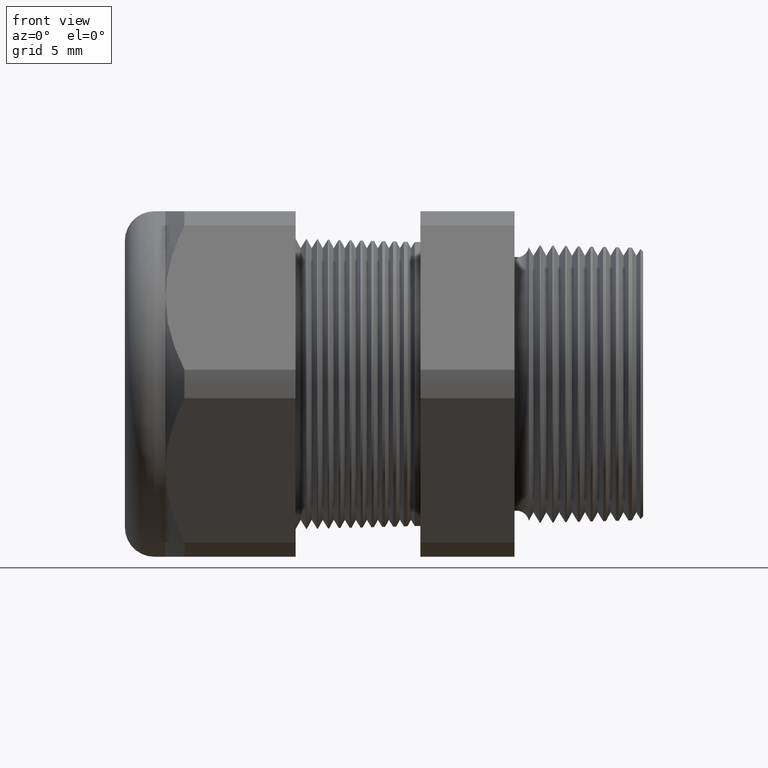
[diagram: clean part render]
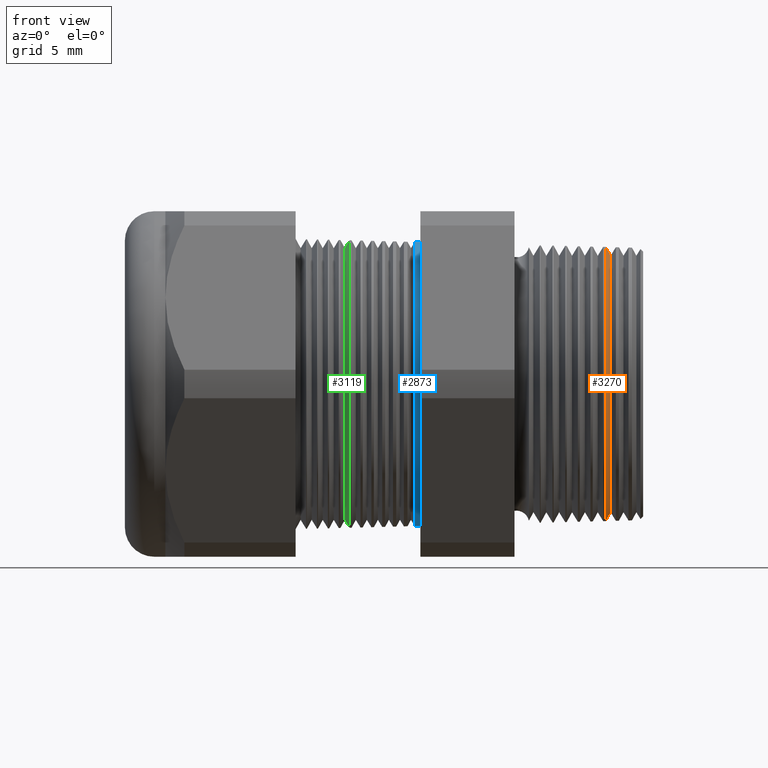
[diagram: same view with three faces highlighted in distinct colors, each labeled with its STEP entity id]
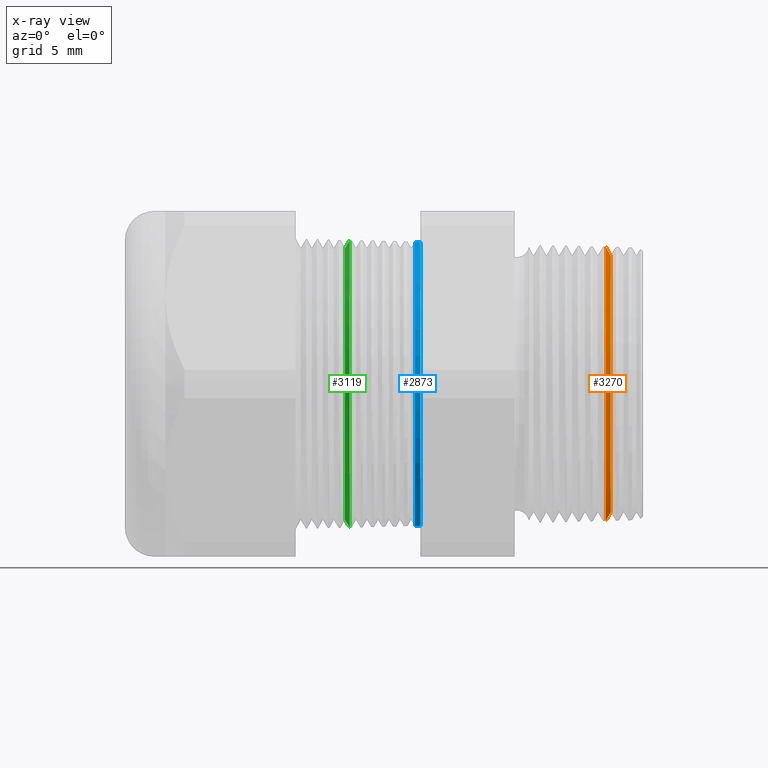
[diagram: x-ray of the same camera — body ghosted, the three highlighted faces saturated]
A machine part, front view with three faces highlighted in distinct colors.
The next image is the same camera in x-ray (body ghosted, the three faces saturated) — at least one of them is partly hidden behind the body in this view.
Their STEP definitions:

[orange] entity #3270 — the highlighted conical surface has half-angle 61.5 deg.
#60 = CARTESIAN_POINT ( 'NONE',  ( -0.04847073567907520000, 4.420147533535343700E-017, -0.3489649185127733400 ) ) ;
#66 = CARTESIAN_POINT ( 'NONE',  ( -0.06146640013548344100, 0.0000000000000000000, 0.3728999549532452400 ) ) ;
#73 = DIRECTION ( 'NONE',  ( -0.4771587602596179000, 0.0000000000000000000, 0.8788171126619600500 ) ) ;
#74 = VECTOR ( 'NONE', #73, 39.37007874015748900 ) ;
#75 = CARTESIAN_POINT ( 'NONE',  ( -0.06499999999999996100, 0.0000000000000000000, 0.3794080363066033600 ) ) ;
#76 = LINE ( 'NONE', #75, #74 ) ;
#117 = DIRECTION ( 'NONE',  ( -0.4771587602596179000, 1.076240564057388100E-016, -0.8788171126619600500 ) ) ;
#118 = VECTOR ( 'NONE', #117, 39.37007874015748900 ) ;
#119 = CARTESIAN_POINT ( 'NONE',  ( -0.06499999999999996100, 4.646408372336645900E-017, -0.3794080363066033600 ) ) ;
#120 = LINE ( 'NONE', #119, #118 ) ;
#679 = CARTESIAN_POINT ( 'NONE',  ( -0.04847073567907520000, 0.0000000000000000000, 0.3489649185127733400 ) ) ;
#760 = CARTESIAN_POINT ( 'NONE',  ( -0.06146640013548344100, 4.567865204054352100E-017, -0.3728999549532452400 ) ) ;
#1420 = DIRECTION ( 'NONE',  ( 0.0000000000000000000, 0.0000000000000000000, -1.000000000000000000 ) ) ;
#1421 = DIRECTION ( 'NONE',  ( 1.000000000000000000, 0.0000000000000000000, 0.0000000000000000000 ) ) ;
#1422 = AXIS2_PLACEMENT_3D ( 'NONE', #1427, #1421, #1420 ) ;
#1423 = CIRCLE ( 'NONE', #1422, 0.3489649185127733400 ) ;
#1424 = DIRECTION ( 'NONE',  ( 0.0000000000000000000, 0.0000000000000000000, 1.000000000000000000 ) ) ;
#1425 = DIRECTION ( 'NONE',  ( -1.000000000000000000, 0.0000000000000000000, 0.0000000000000000000 ) ) ;
#1426 = AXIS2_PLACEMENT_3D ( 'NONE', #1433, #1425, #1424 ) ;
#1427 = CARTESIAN_POINT ( 'NONE',  ( -0.04847073567907520000, 0.0000000000000000000, 0.0000000000000000000 ) ) ;
#1428 = CONICAL_SURFACE ( 'NONE', #1426, 0.3794080363066033600, 1.073377489976501800 ) ;
#1429 = FACE_OUTER_BOUND ( 'NONE', #3271, .T. ) ;
#1433 = CARTESIAN_POINT ( 'NONE',  ( -0.06499999999999996100, 0.0000000000000000000, 0.0000000000000000000 ) ) ;
#1795 = EDGE_CURVE ( 'NONE', #2425, #2777, #3726, .T. ) ;
#2423 = EDGE_CURVE ( 'NONE', #2760, #2425, #76, .T. ) ;
#2425 = VERTEX_POINT ( 'NONE', #66 ) ;
#2427 = VERTEX_POINT ( 'NONE', #60 ) ;
#2431 = EDGE_CURVE ( 'NONE', #2427, #2777, #120, .T. ) ;
#2760 = VERTEX_POINT ( 'NONE', #679 ) ;
#2777 = VERTEX_POINT ( 'NONE', #760 ) ;
#3251 = ORIENTED_EDGE ( 'NONE', *, *, #2423, .T. ) ;
#3252 = ORIENTED_EDGE ( 'NONE', *, *, #1795, .T. ) ;
#3270 = ADVANCED_FACE ( 'NONE', ( #1429 ), #1428, .T. ) ;
#3271 = EDGE_LOOP ( 'NONE', ( #3272, #3273, #3251, #3252 ) ) ;
#3272 = ORIENTED_EDGE ( 'NONE', *, *, #2431, .F. ) ;
#3273 = ORIENTED_EDGE ( 'NONE', *, *, #3274, .F. ) ;
#3274 = EDGE_CURVE ( 'NONE', #2760, #2427, #1423, .T. ) ;
#3722 = DIRECTION ( 'NONE',  ( 0.0000000000000000000, 0.0000000000000000000, 1.000000000000000000 ) ) ;
#3723 = DIRECTION ( 'NONE',  ( 1.000000000000000000, 0.0000000000000000000, 0.0000000000000000000 ) ) ;
#3724 = CARTESIAN_POINT ( 'NONE',  ( -0.06146640013548344100, 0.0000000000000000000, 0.0000000000000000000 ) ) ;
#3725 = AXIS2_PLACEMENT_3D ( 'NONE', #3724, #3723, #3722 ) ;
#3726 = CIRCLE ( 'NONE', #3725, 0.3728999549532452400 ) ;

[blue] entity #2873 — the highlighted conical surface has half-angle 1.5 deg.
#842 = DIRECTION ( 'NONE',  ( 0.0000000000000000000, 0.0000000000000000000, -1.000000000000000000 ) ) ;
#843 = DIRECTION ( 'NONE',  ( 1.000000000000000000, 0.0000000000000000000, 0.0000000000000000000 ) ) ;
#844 = AXIS2_PLACEMENT_3D ( 'NONE', #850, #843, #842 ) ;
#845 = CIRCLE ( 'NONE', #844, 0.3861091579680076500 ) ;
#850 = CARTESIAN_POINT ( 'NONE',  ( -0.5659055118110234400, 0.0000000000000000000, 0.0000000000000000000 ) ) ;
#905 = DIRECTION ( 'NONE',  ( 0.0000000000000000000, 0.0000000000000000000, -1.000000000000000000 ) ) ;
#906 = DIRECTION ( 'NONE',  ( -1.000000000000000000, 0.0000000000000000000, 0.0000000000000000000 ) ) ;
#907 = AXIS2_PLACEMENT_3D ( 'NONE', #913, #906, #905 ) ;
#908 = CIRCLE ( 'NONE', #907, 0.3865126289277093200 ) ;
#909 = DIRECTION ( 'NONE',  ( 0.0000000000000000000, 0.0000000000000000000, 1.000000000000000000 ) ) ;
#910 = DIRECTION ( 'NONE',  ( -1.000000000000000000, 0.0000000000000000000, 0.0000000000000000000 ) ) ;
#911 = CARTESIAN_POINT ( 'NONE',  ( -0.5659055118110234400, 0.0000000000000000000, 0.0000000000000000000 ) ) ;
#912 = AXIS2_PLACEMENT_3D ( 'NONE', #911, #910, #909 ) ;
#913 = CARTESIAN_POINT ( 'NONE',  ( -0.5813134461331293000, 0.0000000000000000000, 0.0000000000000000000 ) ) ;
#914 = CONICAL_SURFACE ( 'NONE', #912, 0.3861091579680076500, 0.02617993877990779100 ) ;
#915 = FACE_OUTER_BOUND ( 'NONE', #2874, .T. ) ;
#2092 = VERTEX_POINT ( 'NONE', #4322 ) ;
#2093 = VERTEX_POINT ( 'NONE', #4321 ) ;
#2098 = EDGE_CURVE ( 'NONE', #2092, #2304, #4369, .T. ) ;
#2107 = EDGE_CURVE ( 'NONE', #2093, #2302, #4354, .T. ) ;
#2302 = VERTEX_POINT ( 'NONE', #4784 ) ;
#2304 = VERTEX_POINT ( 'NONE', #4783 ) ;
#2838 = EDGE_CURVE ( 'NONE', #2092, #2093, #845, .T. ) ;
#2873 = ADVANCED_FACE ( 'NONE', ( #915 ), #914, .T. ) ;
#2874 = EDGE_LOOP ( 'NONE', ( #2875, #2876, #2877, #2878 ) ) ;
#2875 = ORIENTED_EDGE ( 'NONE', *, *, #2107, .F. ) ;
#2876 = ORIENTED_EDGE ( 'NONE', *, *, #2838, .F. ) ;
#2877 = ORIENTED_EDGE ( 'NONE', *, *, #2098, .T. ) ;
#2878 = ORIENTED_EDGE ( 'NONE', *, *, #2879, .F. ) ;
#2879 = EDGE_CURVE ( 'NONE', #2302, #2304, #908, .T. ) ;
#4321 = CARTESIAN_POINT ( 'NONE',  ( -0.5659055118110234400, 4.730943991366740900E-017, -0.3861091579680076500 ) ) ;
#4322 = CARTESIAN_POINT ( 'NONE',  ( -0.5659055118110234400, 0.0000000000000000000, 0.3861091579680076500 ) ) ;
#4351 = DIRECTION ( 'NONE',  ( -0.9996573249755573700, 3.205751595667382300E-018, -0.02617694830786600200 ) ) ;
#4352 = VECTOR ( 'NONE', #4351, 39.37007874015748100 ) ;
#4353 = CARTESIAN_POINT ( 'NONE',  ( -0.5659055118110234400, 4.728473444270003000E-017, -0.3861091579680076500 ) ) ;
#4354 = LINE ( 'NONE', #4353, #4352 ) ;
#4362 = DIRECTION ( 'NONE',  ( -0.9996573249755573700, 0.0000000000000000000, 0.02617694830786600200 ) ) ;
#4363 = VECTOR ( 'NONE', #4362, 39.37007874015748100 ) ;
#4364 = CARTESIAN_POINT ( 'NONE',  ( -0.5659055118110234400, 0.0000000000000000000, 0.3861091579680076500 ) ) ;
#4369 = LINE ( 'NONE', #4364, #4363 ) ;
#4783 = CARTESIAN_POINT ( 'NONE',  ( -0.5813134461331293000, 0.0000000000000000000, 0.3865126289277093800 ) ) ;
#4784 = CARTESIAN_POINT ( 'NONE',  ( -0.5813134461331293000, 4.733414538463479300E-017, -0.3865126289277093800 ) ) ;

[green] entity #3119 — the highlighted conical surface has half-angle 58.5 deg.
#1172 = DIRECTION ( 'NONE',  ( 0.0000000000000000000, 0.0000000000000000000, -1.000000000000000000 ) ) ;
#1173 = DIRECTION ( 'NONE',  ( 1.000000000000000000, 0.0000000000000000000, 0.0000000000000000000 ) ) ;
#1174 = AXIS2_PLACEMENT_3D ( 'NONE', #1179, #1173, #1172 ) ;
#1175 = CIRCLE ( 'NONE', #1174, 0.3696307351718083900 ) ;
#1179 = CARTESIAN_POINT ( 'NONE',  ( -0.7716586839320378500, 0.0000000000000000000, 0.0000000000000000000 ) ) ;
#1227 = DIRECTION ( 'NONE',  ( 0.0000000000000000000, 0.0000000000000000000, -1.000000000000000000 ) ) ;
#1228 = DIRECTION ( 'NONE',  ( 1.000000000000000000, 0.0000000000000000000, 0.0000000000000000000 ) ) ;
#1229 = CARTESIAN_POINT ( 'NONE',  ( -0.7716586839320378500, 0.0000000000000000000, 0.0000000000000000000 ) ) ;
#1230 = AXIS2_PLACEMENT_3D ( 'NONE', #1229, #1228, #1227 ) ;
#1232 = CONICAL_SURFACE ( 'NONE', #1230, 0.3696307351718083900, 1.021017612416699200 ) ;
#1233 = FACE_OUTER_BOUND ( 'NONE', #3120, .T. ) ;
#1727 = VERTEX_POINT ( 'NONE', #3617 ) ;
#1730 = VERTEX_POINT ( 'NONE', #3606 ) ;
#1731 = VERTEX_POINT ( 'NONE', #3605 ) ;
#1733 = VERTEX_POINT ( 'NONE', #3604 ) ;
#1741 = EDGE_CURVE ( 'NONE', #1731, #1733, #3654, .T. ) ;
#1743 = EDGE_CURVE ( 'NONE', #1730, #1727, #3650, .T. ) ;
#1823 = EDGE_CURVE ( 'NONE', #1727, #1733, #3845, .T. ) ;
#3064 = EDGE_CURVE ( 'NONE', #1731, #1730, #1175, .T. ) ;
#3119 = ADVANCED_FACE ( 'NONE', ( #1233 ), #1232, .T. ) ;
#3120 = EDGE_LOOP ( 'NONE', ( #3121, #3122, #3123, #3124 ) ) ;
#3121 = ORIENTED_EDGE ( 'NONE', *, *, #1741, .F. ) ;
#3122 = ORIENTED_EDGE ( 'NONE', *, *, #3064, .T. ) ;
#3123 = ORIENTED_EDGE ( 'NONE', *, *, #1743, .T. ) ;
#3124 = ORIENTED_EDGE ( 'NONE', *, *, #1823, .T. ) ;
#3604 = CARTESIAN_POINT ( 'NONE',  ( -0.7584706482027782100, 0.0000000000000000000, 0.3911516535265205400 ) ) ;
#3605 = CARTESIAN_POINT ( 'NONE',  ( -0.7716586839320378500, 0.0000000000000000000, 0.3696307351718083900 ) ) ;
#3606 = CARTESIAN_POINT ( 'NONE',  ( -0.7716586839320378500, 4.662494297100281200E-017, -0.3696307351718083900 ) ) ;
#3617 = CARTESIAN_POINT ( 'NONE',  ( -0.7584706482027782100, 4.790226204724478200E-017, -0.3911516535265205400 ) ) ;
#3647 = DIRECTION ( 'NONE',  ( 0.5224985647159348100, 0.0000000000000000000, -0.8526401643541007300 ) ) ;
#3648 = VECTOR ( 'NONE', #3647, 39.37007874015748900 ) ;
#3649 = CARTESIAN_POINT ( 'NONE',  ( -0.7716586839320378500, 0.0000000000000000000, -0.3696307351718083900 ) ) ;
#3650 = LINE ( 'NONE', #3649, #3648 ) ;
#3651 = DIRECTION ( 'NONE',  ( 0.5224985647159348100, 1.044183048100722500E-016, 0.8526401643541007300 ) ) ;
#3652 = VECTOR ( 'NONE', #3651, 39.37007874015748900 ) ;
#3653 = CARTESIAN_POINT ( 'NONE',  ( -0.7716586839320378500, 4.526670966946381200E-017, 0.3696307351718083900 ) ) ;
#3654 = LINE ( 'NONE', #3653, #3652 ) ;
#3841 = DIRECTION ( 'NONE',  ( 0.0000000000000000000, 0.0000000000000000000, -1.000000000000000000 ) ) ;
#3842 = DIRECTION ( 'NONE',  ( -1.000000000000000000, 0.0000000000000000000, 0.0000000000000000000 ) ) ;
#3843 = CARTESIAN_POINT ( 'NONE',  ( -0.7584706482027782100, 0.0000000000000000000, 0.0000000000000000000 ) ) ;
#3844 = AXIS2_PLACEMENT_3D ( 'NONE', #3843, #3842, #3841 ) ;
#3845 = CIRCLE ( 'NONE', #3844, 0.3911516535265205400 ) ;